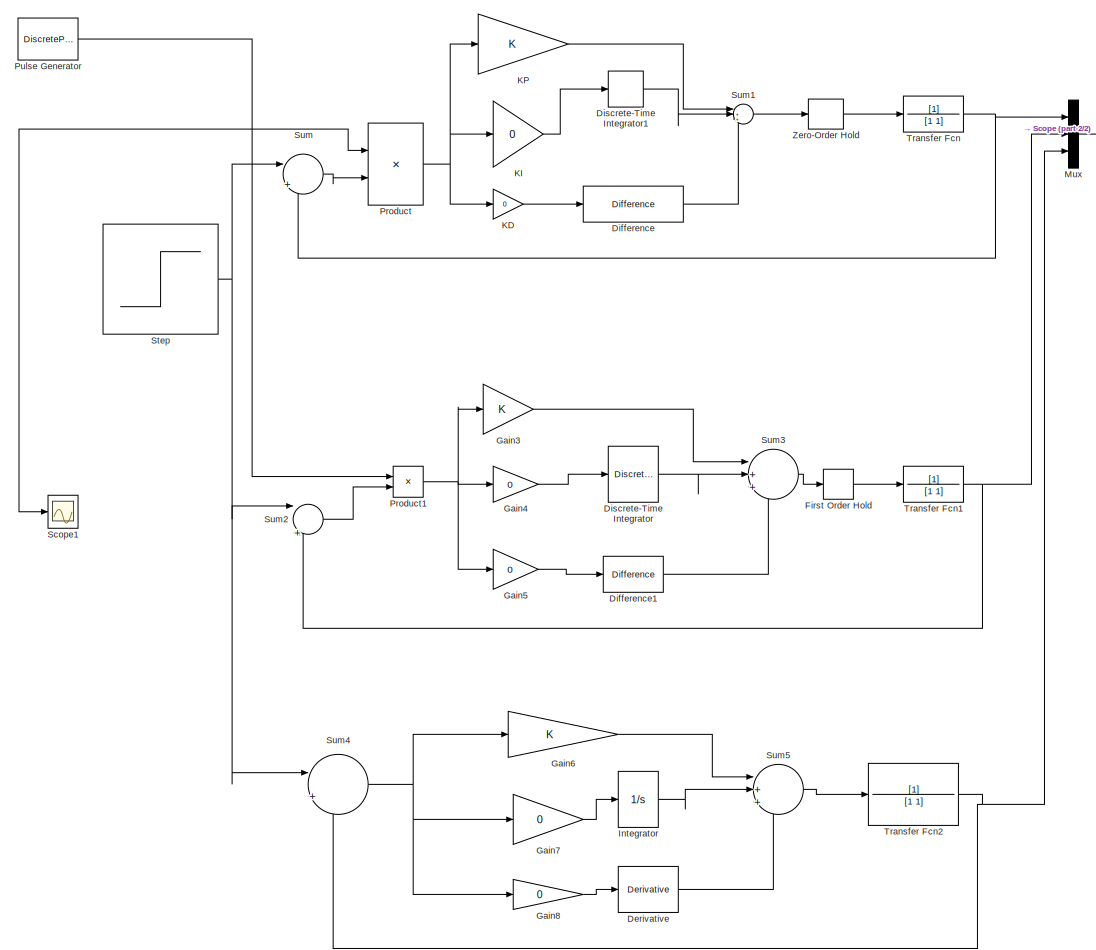
[diagram: root canvas - part 1/2, most of the canvas]
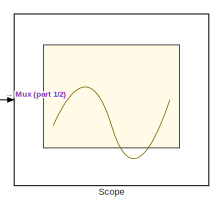
[diagram: root canvas - part 2/2, top right region]
MODEL slx_bad8d510194b
KIND model
CONFIG AbsTol = auto
CONFIG EnableMultiTasking = off
CONFIG FixedStep = auto
CONFIG MaxStep = auto
CONFIG MinStep = auto
CONFIG RelTol = 1e-3
CONFIG SampleTimeConstraint = Unconstrained
CONFIG SolverName = VariableStepAuto
CONFIG StartTime = 0.0
CONFIG StopTime = 10.0
BLOCK [DiscretePulseGenerator]  Pulse Generator
  Period = 5
  PulseWidth = 5
  SampleTime = 0.5
BLOCK [Derivative] Derivative
BLOCK [Reference] Difference  REF=simulink/Discrete/Difference
  SourceBlock = simulink/Discrete/Difference
  SourceType = Difference
BLOCK [Reference] Difference1  REF=simulink/Discrete/Difference
  SourceBlock = simulink/Discrete/Difference
  SourceType = Difference
BLOCK [DiscreteIntegrator] Discrete-Time Integrator
  ICPrevOutput = DiscIntNeverNeededParam
  ICPrevScaledInput = DiscIntNeverNeededParam
  IgnoreLimit = on
  InitialConditionSetting = Auto
  IntegratorMethod = Accumulation: Backward Euler
  SampleTime = -1
BLOCK [DiscreteIntegrator] Discrete-Time Integrator1
  ICPrevOutput = DiscIntNeverNeededParam
  ICPrevScaledInput = DiscIntNeverNeededParam
  InitialConditionSetting = Auto
  IntegratorMethod = Accumulation: Backward Euler
  SampleTime = -1
BLOCK [FirstOrderHold] First Order Hold
  AllowContinuousInput = on
  ErrorTolerance = 0
BLOCK [Gain] Gain3
BLOCK [Gain] Gain4
  Gain = 0
BLOCK [Gain] Gain5
  Gain = 0
BLOCK [Gain] Gain6
BLOCK [Gain] Gain7
  Gain = 0
BLOCK [Gain] Gain8
  Gain = 0
BLOCK [Integrator] Integrator
BLOCK [Gain] KD
  Gain = 0
BLOCK [Gain] KI
  Gain = 0
BLOCK [Gain] KP
BLOCK [Mux] Mux
  DisplayOption = bar
  Inputs = 3
BLOCK [Product] Product
BLOCK [Product] Product1
BLOCK [Scope] Scope
  Floating = off
  NumInputPorts = 1
  ScopeSpecificationString = Simulink.scopes.TimeScopeBlockCfg('CurrentConfiguration', extmgr.ConfigurationSet(extmgr.Configuration('Core','General UI',true),extmgr.Configuration('Core','Source UI',true),extmgr.Configuration('Sources','WiredSimulink',true),extmgr.Configuration('Visuals','Time Domain',true,'SerializedDisplays',{struct('MinYLimReal','-0.0625','MaxYLimReal','0.5625','YLabelReal','','MinYLimMag','0.00000','MaxYLi...<+2862ch>
BLOCK [Scope] Scope1
  Floating = off
  NumInputPorts = 2
  ScopeSpecificationString = Simulink.scopes.TimeScopeBlockCfg('CurrentConfiguration', extmgr.ConfigurationSet(extmgr.Configuration('Core','General UI',true),extmgr.Configuration('Core','Source UI',true),extmgr.Configuration('Sources','WiredSimulink',true,'DataLoggingVariableName','ScopeData1'),extmgr.Configuration('Visuals','Time Domain',true,'SerializedDisplays',{struct('MinYLimReal','0.9','MaxYLimReal','1.1','YLabelReal','...<+1409ch>
BLOCK [Step] Step
  SampleTime = .5
BLOCK [Sum] Sum
  Inputs = |+-
BLOCK [Sum] Sum1
  Inputs = |+++
BLOCK [Sum] Sum2
  Inputs = |+-
BLOCK [Sum] Sum3
  Inputs = |+++
BLOCK [Sum] Sum4
  Inputs = |+-
BLOCK [Sum] Sum5
  Inputs = |+++
BLOCK [TransferFcn] Transfer Fcn
  Denominator = [1 1]
BLOCK [TransferFcn] Transfer Fcn1
  Denominator = [1 1]
BLOCK [TransferFcn] Transfer Fcn2
  Denominator = [1 1]
BLOCK [ZeroOrderHold] Zero-Order Hold
  SampleTime = 0.5
NET  Pulse Generator:1 -> Product1:1, Product:1, Scope1:1
LINE Derivative:1 -> Sum5:3
LINE Difference1:1 -> Sum3:3
LINE Difference:1 -> Sum1:3
LINE Discrete-Time Integrator1:1 -> Sum1:2
LINE Discrete-Time Integrator:1 -> Sum3:2
LINE First Order Hold:1 -> Transfer Fcn1:1
LINE Gain3:1 -> Sum3:1
LINE Gain4:1 -> Discrete-Time Integrator:1
LINE Gain5:1 -> Difference1:1
LINE Gain6:1 -> Sum5:1
LINE Gain7:1 -> Integrator:1
LINE Gain8:1 -> Derivative:1
LINE Integrator:1 -> Sum5:2
LINE KD:1 -> Difference:1
LINE KI:1 -> Discrete-Time Integrator1:1
LINE KP:1 -> Sum1:1
LINE Mux:1 -> Scope:1
NET Product1:1 -> Gain3:1, Gain4:1, Gain5:1
NET Product:1 -> KD:1, KI:1, KP:1
NET Step:1 -> Sum2:1, Sum4:1, Sum:1
LINE Sum1:1 -> Zero-Order Hold:1
LINE Sum2:1 -> Product1:2
LINE Sum3:1 -> First Order Hold:1
NET Sum4:1 -> Gain6:1, Gain7:1, Gain8:1
LINE Sum5:1 -> Transfer Fcn2:1
LINE Sum:1 -> Product:2
NET Transfer Fcn1:1 -> Mux:2, Sum2:2
NET Transfer Fcn2:1 -> Mux:3, Sum4:2
NET Transfer Fcn:1 -> Mux:1, Sum:2
LINE Zero-Order Hold:1 -> Transfer Fcn:1
note: NET lines group one-source signal fan-out (src -> all destinations, sorted); 1:1 wires keep LINE
